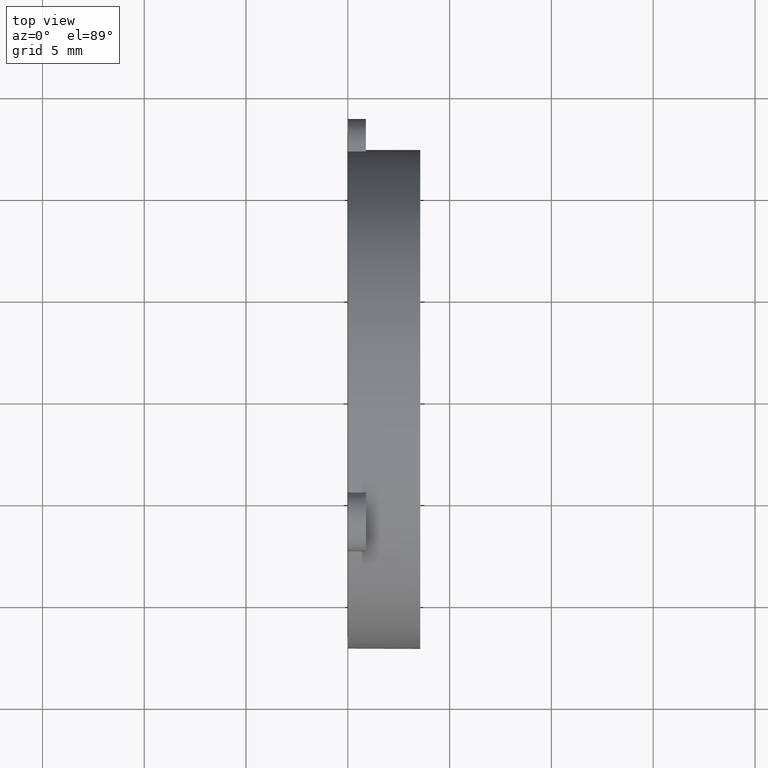
[diagram: clean part render]
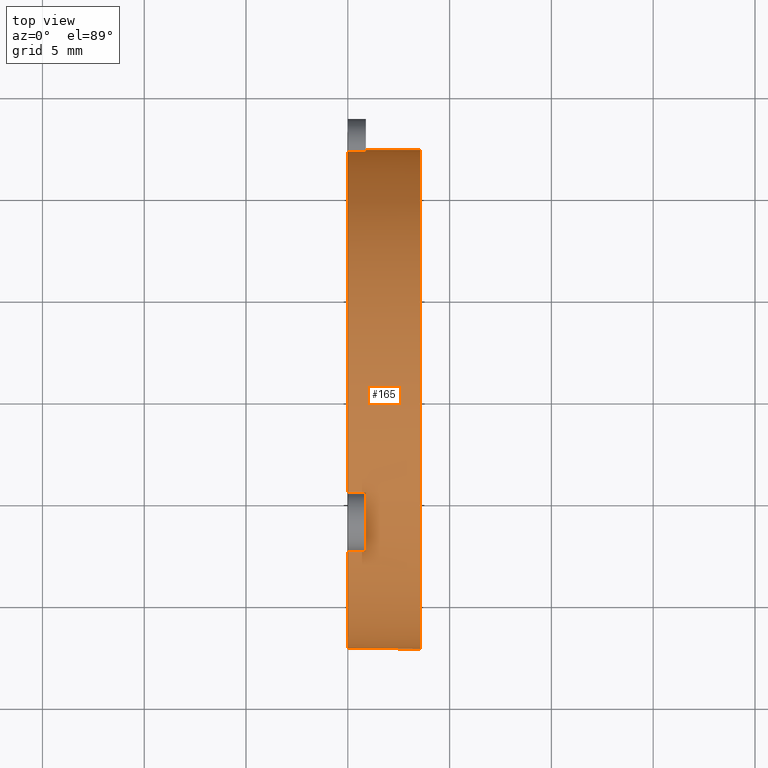
[diagram: same view with one face highlighted and labeled with its STEP entity id]
A machine part, top view. The second image highlights one B-rep face of the part: STEP entity #165.
In plain terms, the highlighted cylindrical surface (bore or boss wall) has radius 12.2555 mm, axis along (1, 0, 0).
Its self-contained STEP definition (entity closure, byte-faithful):
#16=FACE_BOUND('',#55,.T.);
#19=LINE('',#267,#25);
#20=LINE('',#269,#26);
#21=LINE('',#274,#27);
#22=LINE('',#278,#28);
#23=LINE('',#285,#29);
#24=LINE('',#289,#30);
#25=VECTOR('',#211,0.393700787401575);
#26=VECTOR('',#212,0.393700787401575);
#27=VECTOR('',#217,0.393700787401575);
#28=VECTOR('',#220,0.393700787401575);
#29=VECTOR('',#229,0.393700787401575);
#30=VECTOR('',#232,0.393700787401575);
#34=CYLINDRICAL_SURFACE('',#196,0.4825);
#43=FACE_OUTER_BOUND('',#54,.T.);
#54=EDGE_LOOP('',(#136,#137,#138,#139,#140,#141,#142,#143,#144,#145,#146,
#147));
#55=EDGE_LOOP('',(#148));
#60=CIRCLE('',#177,0.4825);
#65=CIRCLE('',#185,0.4825);
#68=CIRCLE('',#190,0.4825);
#69=CIRCLE('',#192,0.4825);
#70=CIRCLE('',#193,0.4825);
#71=CIRCLE('',#194,0.4825);
#73=CIRCLE('',#197,0.4825);
#75=VERTEX_POINT('',#261);
#76=VERTEX_POINT('',#262);
#77=VERTEX_POINT('',#266);
#78=VERTEX_POINT('',#268);
#79=VERTEX_POINT('',#272);
#80=VERTEX_POINT('',#273);
#81=VERTEX_POINT('',#275);
#82=VERTEX_POINT('',#277);
#83=VERTEX_POINT('',#283);
#84=VERTEX_POINT('',#284);
#85=VERTEX_POINT('',#286);
#86=VERTEX_POINT('',#288);
#88=VERTEX_POINT('',#300);
#90=EDGE_CURVE('',#75,#76,#60,.T.);
#92=EDGE_CURVE('',#76,#77,#19,.T.);
#93=EDGE_CURVE('',#78,#75,#20,.T.);
#95=EDGE_CURVE('',#79,#80,#21,.T.);
#97=EDGE_CURVE('',#82,#81,#22,.T.);
#99=EDGE_CURVE('',#80,#82,#65,.T.);
#100=EDGE_CURVE('',#83,#84,#23,.T.);
#102=EDGE_CURVE('',#86,#85,#24,.T.);
#104=EDGE_CURVE('',#84,#86,#68,.T.);
#105=EDGE_CURVE('',#85,#78,#69,.T.);
#106=EDGE_CURVE('',#81,#83,#70,.T.);
#107=EDGE_CURVE('',#77,#79,#71,.T.);
#109=EDGE_CURVE('',#88,#88,#73,.T.);
#136=ORIENTED_EDGE('',*,*,#92,.T.);
#137=ORIENTED_EDGE('',*,*,#107,.T.);
#138=ORIENTED_EDGE('',*,*,#95,.T.);
#139=ORIENTED_EDGE('',*,*,#99,.T.);
#140=ORIENTED_EDGE('',*,*,#97,.T.);
#141=ORIENTED_EDGE('',*,*,#106,.T.);
#142=ORIENTED_EDGE('',*,*,#100,.T.);
#143=ORIENTED_EDGE('',*,*,#104,.T.);
#144=ORIENTED_EDGE('',*,*,#102,.T.);
#145=ORIENTED_EDGE('',*,*,#105,.T.);
#146=ORIENTED_EDGE('',*,*,#93,.T.);
#147=ORIENTED_EDGE('',*,*,#90,.T.);
#148=ORIENTED_EDGE('',*,*,#109,.F.);
#165=ADVANCED_FACE('',(#43,#16),#34,.T.);
#177=AXIS2_PLACEMENT_3D('',#263,#205,#206);
#185=AXIS2_PLACEMENT_3D('',#281,#225,#226);
#190=AXIS2_PLACEMENT_3D('',#292,#237,#238);
#192=AXIS2_PLACEMENT_3D('',#294,#241,#242);
#193=AXIS2_PLACEMENT_3D('',#295,#243,#244);
#194=AXIS2_PLACEMENT_3D('',#296,#245,#246);
#196=AXIS2_PLACEMENT_3D('',#299,#249,#250);
#197=AXIS2_PLACEMENT_3D('',#301,#251,#252);
#205=DIRECTION('center_axis',(1.,0.,0.));
#206=DIRECTION('ref_axis',(0.,1.,0.));
#211=DIRECTION('',(-1.,0.,0.));
#212=DIRECTION('',(1.,0.,0.));
#217=DIRECTION('',(1.,0.,0.));
#220=DIRECTION('',(-1.,0.,0.));
#225=DIRECTION('center_axis',(1.,0.,0.));
#226=DIRECTION('ref_axis',(0.,1.,0.));
#229=DIRECTION('',(1.,0.,0.));
#232=DIRECTION('',(-1.,0.,0.));
#237=DIRECTION('center_axis',(1.,0.,0.));
#238=DIRECTION('ref_axis',(0.,1.,0.));
#241=DIRECTION('center_axis',(1.,0.,0.));
#242=DIRECTION('ref_axis',(0.,0.,-1.));
#243=DIRECTION('center_axis',(1.,0.,0.));
#244=DIRECTION('ref_axis',(0.,0.,-1.));
#245=DIRECTION('center_axis',(1.,0.,0.));
#246=DIRECTION('ref_axis',(0.,0.,-1.));
#249=DIRECTION('center_axis',(1.,0.,0.));
#250=DIRECTION('ref_axis',(0.,1.,0.));
#251=DIRECTION('center_axis',(1.,0.,0.));
#252=DIRECTION('ref_axis',(0.,0.,-1.));
#261=CARTESIAN_POINT('',(0.035,-0.291245703600135,-0.384684533266496));
#262=CARTESIAN_POINT('',(0.035,-0.187523726451678,-0.444568444694038));
#263=CARTESIAN_POINT('Origin',(0.035,0.,0.));
#266=CARTESIAN_POINT('',(0.,-0.187523726451678,-0.444568444694038));
#267=CARTESIAN_POINT('',(0.,-0.187523726451678,-0.444568444694038));
#268=CARTESIAN_POINT('',(0.,-0.291245703600135,-0.384684533266496));
#269=CARTESIAN_POINT('',(0.,-0.291245703600135,-0.384684533266496));
#272=CARTESIAN_POINT('',(0.,0.478769430051813,-0.0598839114275419));
#273=CARTESIAN_POINT('',(0.035,0.478769430051813,-0.0598839114275419));
#274=CARTESIAN_POINT('',(0.,0.478769430051813,-0.0598839114275419));
#275=CARTESIAN_POINT('',(0.,0.478769430051813,0.0598839114275419));
#277=CARTESIAN_POINT('',(0.035,0.478769430051813,0.0598839114275419));
#278=CARTESIAN_POINT('',(0.,0.478769430051813,0.0598839114275419));
#281=CARTESIAN_POINT('Origin',(0.035,0.,0.));
#283=CARTESIAN_POINT('',(0.,-0.187523726451678,0.444568444694038));
#284=CARTESIAN_POINT('',(0.035,-0.187523726451678,0.444568444694038));
#285=CARTESIAN_POINT('',(0.,-0.187523726451678,0.444568444694038));
#286=CARTESIAN_POINT('',(0.,-0.291245703600135,0.384684533266496));
#288=CARTESIAN_POINT('',(0.035,-0.291245703600135,0.384684533266496));
#289=CARTESIAN_POINT('',(0.,-0.291245703600135,0.384684533266496));
#292=CARTESIAN_POINT('Origin',(0.035,0.,0.));
#294=CARTESIAN_POINT('Origin',(0.,0.,0.));
#295=CARTESIAN_POINT('Origin',(0.,0.,0.));
#296=CARTESIAN_POINT('Origin',(0.,0.,0.));
#299=CARTESIAN_POINT('Origin',(0.07,0.,0.));
#300=CARTESIAN_POINT('',(0.14,0.4825,0.));
#301=CARTESIAN_POINT('Origin',(0.14,0.,0.));